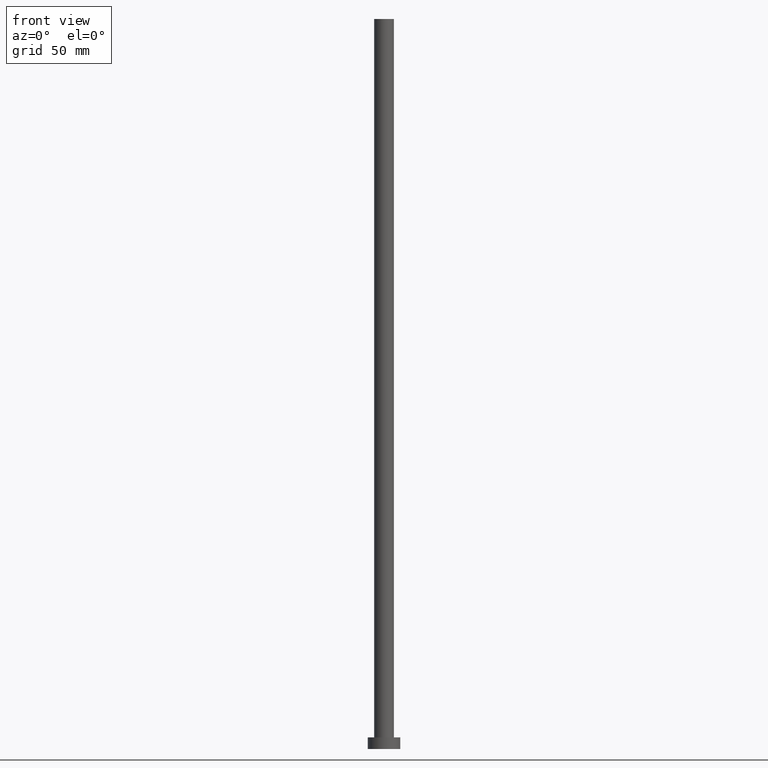
[diagram: clean part render]
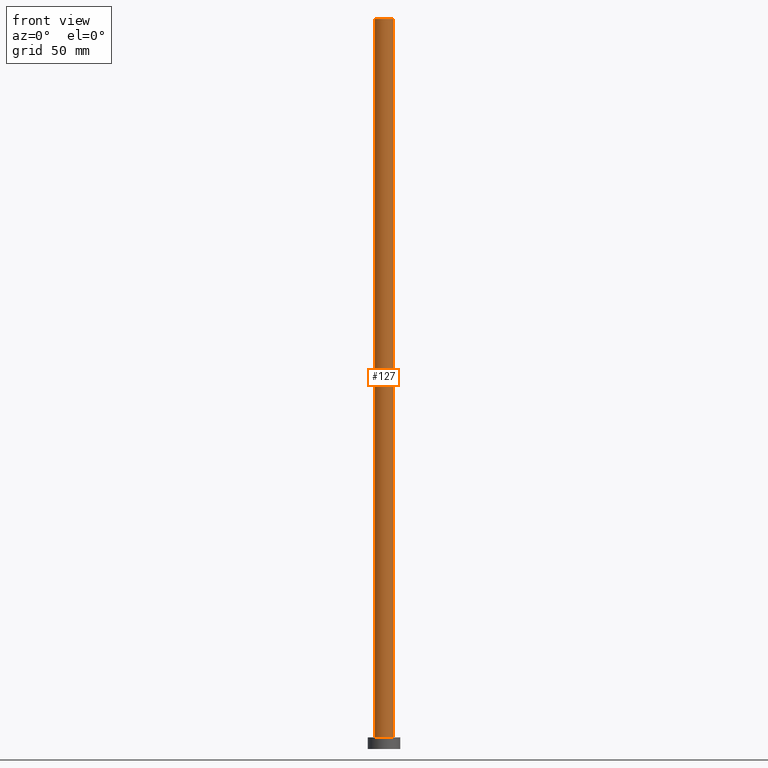
[diagram: same view with one face highlighted and labeled with its STEP entity id]
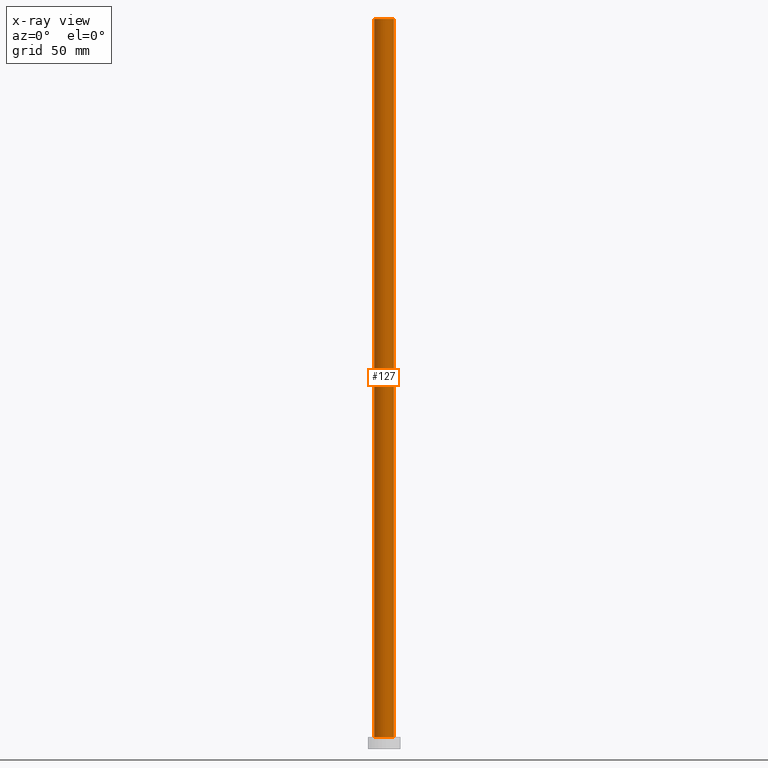
[diagram: x-ray of the same camera — body ghosted, the highlighted face saturated]
A machine part, front view. The second image highlights one B-rep face of the part: STEP entity #127.
The next image is the same camera in x-ray: the body ghosted, the highlighted face saturated — about 0% of this face is hidden behind the body in this view.
In plain terms, the highlighted cylindrical surface (edge-blend (fillet) strip) has radius 4.25 mm, axis along (-0, -0, -1).
Its self-contained STEP definition (entity closure, byte-faithful):
#15 = ORIENTED_EDGE ( 'NONE', *, *, #241, .T. ) ;
#30 = ORIENTED_EDGE ( 'NONE', *, *, #167, .F. ) ;
#33 = FACE_OUTER_BOUND ( 'NONE', #87, .T. ) ;
#37 = LINE ( 'NONE', #216, #71 ) ;
#38 = DIRECTION ( 'NONE',  ( -0.000000000000000000, -0.000000000000000000, -1.000000000000000000 ) ) ;
#60 = CIRCLE ( 'NONE', #138, 4.250000000000000000 ) ;
#69 = DIRECTION ( 'NONE',  ( -1.000000000000000000, 0.000000000000000000, 0.000000000000000000 ) ) ;
#71 = VECTOR ( 'NONE', #229, 1000.000000000000000 ) ;
#78 = EDGE_CURVE ( 'NONE', #106, #145, #60, .T. ) ;
#79 = ORIENTED_EDGE ( 'NONE', *, *, #78, .F. ) ;
#83 = DIRECTION ( 'NONE',  ( 0.000000000000000000, 0.000000000000000000, 1.000000000000000000 ) ) ;
#87 = EDGE_LOOP ( 'NONE', ( #30, #79, #171, #15 ) ) ;
#88 = DIRECTION ( 'NONE',  ( 0.000000000000000000, 0.000000000000000000, 1.000000000000000000 ) ) ;
#92 = CARTESIAN_POINT ( 'NONE',  ( -4.250000000000000000, 0.000000000000000000, 315.0000000000000000 ) ) ;
#100 = CARTESIAN_POINT ( 'NONE',  ( 0.000000000000000000, 0.000000000000000000, 5.000000000000000000 ) ) ;
#103 = CIRCLE ( 'NONE', #137, 4.250000000000000000 ) ;
#105 = CARTESIAN_POINT ( 'NONE',  ( 4.250000000000000000, 5.204748896376250699E-16, 5.000000000000000000 ) ) ;
#106 = VERTEX_POINT ( 'NONE', #92 ) ;
#115 = DIRECTION ( 'NONE',  ( 1.000000000000000000, 0.000000000000000000, 0.000000000000000000 ) ) ;
#127 = ADVANCED_FACE ( 'NONE', ( #33 ), #230, .T. ) ;
#131 = EDGE_CURVE ( 'NONE', #106, #226, #37, .T. ) ;
#132 = LINE ( 'NONE', #149, #237 ) ;
#137 = AXIS2_PLACEMENT_3D ( 'NONE', #100, #83, #182 ) ;
#138 = AXIS2_PLACEMENT_3D ( 'NONE', #144, #88, #115 ) ;
#144 = CARTESIAN_POINT ( 'NONE',  ( 0.000000000000000000, 0.000000000000000000, 315.0000000000000000 ) ) ;
#145 = VERTEX_POINT ( 'NONE', #146 ) ;
#146 = CARTESIAN_POINT ( 'NONE',  ( 4.250000000000000000, 5.204748896376250699E-16, 315.0000000000000000 ) ) ;
#149 = CARTESIAN_POINT ( 'NONE',  ( 4.250000000000000000, 5.204748896376250699E-16, 315.0000000000000000 ) ) ;
#167 = EDGE_CURVE ( 'NONE', #145, #246, #132, .T. ) ;
#171 = ORIENTED_EDGE ( 'NONE', *, *, #131, .T. ) ;
#182 = DIRECTION ( 'NONE',  ( 1.000000000000000000, 0.000000000000000000, 0.000000000000000000 ) ) ;
#207 = CARTESIAN_POINT ( 'NONE',  ( -4.250000000000000000, 0.000000000000000000, 5.000000000000000000 ) ) ;
#216 = CARTESIAN_POINT ( 'NONE',  ( -4.250000000000000000, 0.000000000000000000, 315.0000000000000000 ) ) ;
#217 = AXIS2_PLACEMENT_3D ( 'NONE', #247, #38, #69 ) ;
#226 = VERTEX_POINT ( 'NONE', #207 ) ;
#229 = DIRECTION ( 'NONE',  ( -0.000000000000000000, -0.000000000000000000, -1.000000000000000000 ) ) ;
#230 = CYLINDRICAL_SURFACE ( 'NONE', #217, 4.250000000000000000 ) ;
#234 = DIRECTION ( 'NONE',  ( -0.000000000000000000, -0.000000000000000000, -1.000000000000000000 ) ) ;
#237 = VECTOR ( 'NONE', #234, 1000.000000000000000 ) ;
#241 = EDGE_CURVE ( 'NONE', #226, #246, #103, .T. ) ;
#246 = VERTEX_POINT ( 'NONE', #105 ) ;
#247 = CARTESIAN_POINT ( 'NONE',  ( 0.000000000000000000, 0.000000000000000000, 315.0000000000000000 ) ) ;